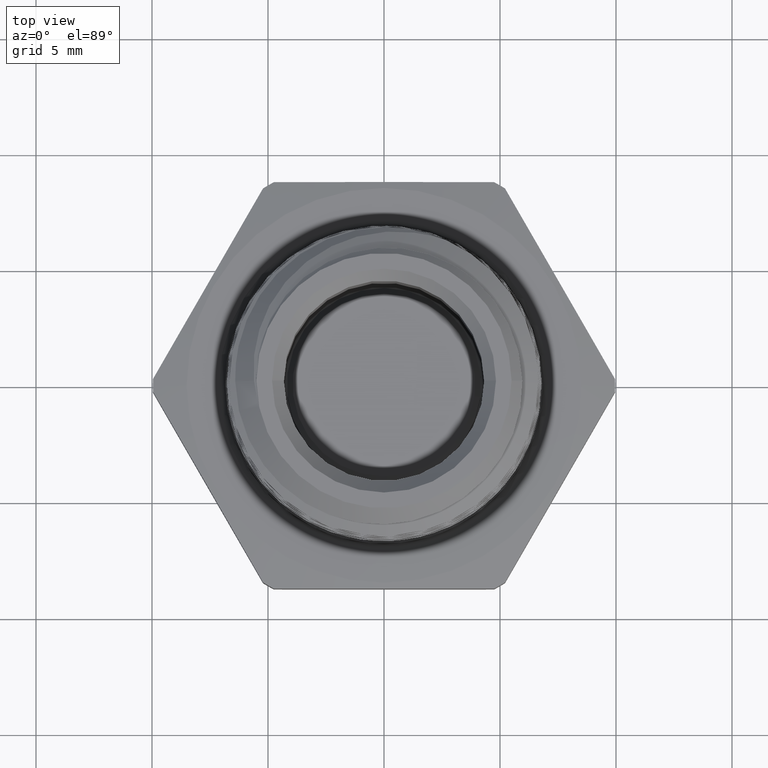
[diagram: clean part render]
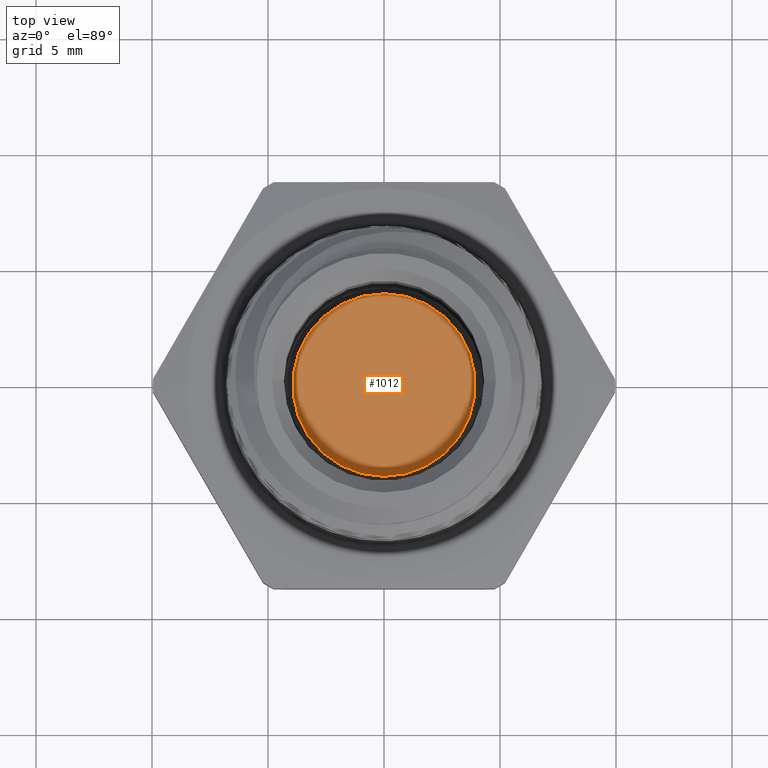
[diagram: same view with one face highlighted and labeled with its STEP entity id]
A machine part, top view. The second image highlights one B-rep face of the part: STEP entity #1012.
In plain terms, the highlighted planar face has unit normal (0, 0, 1).
Its self-contained STEP definition (entity closure, byte-faithful):
#588 = CARTESIAN_POINT ( 'NONE',  ( 0.0000000000000000000, 0.0000000000000000000, 0.1968503937007874100 ) ) ;
#590 = PLANE ( 'NONE',  #2279 ) ;
#592 = DIRECTION ( 'NONE',  ( -0.0000000000000000000, 0.0000000000000000000, 1.000000000000000000 ) ) ;
#593 = DIRECTION ( 'NONE',  ( 1.000000000000000000, 0.0000000000000000000, 0.0000000000000000000 ) ) ;
#631 = CARTESIAN_POINT ( 'NONE',  ( 0.1550000000000000000, 1.959434878635765400E-017, 0.1968503937007874100 ) ) ;
#636 = CARTESIAN_POINT ( 'NONE',  ( -0.1550000000000000000, 0.0000000000000000000, 0.1968503937007874100 ) ) ;
#1012 = ADVANCED_FACE ( 'NONE', ( #2168 ), #590, .T. ) ;
#1026 = ORIENTED_EDGE ( 'NONE', *, *, #1716, .T. ) ;
#1027 = ORIENTED_EDGE ( 'NONE', *, *, #1708, .T. ) ;
#1361 = VERTEX_POINT ( 'NONE', #631 ) ;
#1366 = VERTEX_POINT ( 'NONE', #636 ) ;
#1622 = EDGE_LOOP ( 'NONE', ( #1026, #1027 ) ) ;
#1708 = EDGE_CURVE ( 'NONE', #1361, #1366, #4681, .T. ) ;
#1716 = EDGE_CURVE ( 'NONE', #1366, #1361, #4695, .T. ) ;
#2168 = FACE_OUTER_BOUND ( 'NONE', #1622, .T. ) ;
#2279 = AXIS2_PLACEMENT_3D ( 'NONE', #588, #592, #593 ) ;
#2317 = AXIS2_PLACEMENT_3D ( 'NONE', #4827, #4828, #4829 ) ;
#2321 = AXIS2_PLACEMENT_3D ( 'NONE', #4845, #4846, #4847 ) ;
#4681 = CIRCLE ( 'NONE', #2317, 0.1550000000000000000 ) ;
#4695 = CIRCLE ( 'NONE', #2321, 0.1550000000000000000 ) ;
#4827 = CARTESIAN_POINT ( 'NONE',  ( -1.333458843753816200E-017, 0.0000000000000000000, 0.1968503937007874100 ) ) ;
#4828 = DIRECTION ( 'NONE',  ( -0.0000000000000000000, 0.0000000000000000000, 1.000000000000000000 ) ) ;
#4829 = DIRECTION ( 'NONE',  ( 1.000000000000000000, 0.0000000000000000000, 0.0000000000000000000 ) ) ;
#4845 = CARTESIAN_POINT ( 'NONE',  ( -1.333458843753816200E-017, 0.0000000000000000000, 0.1968503937007874100 ) ) ;
#4846 = DIRECTION ( 'NONE',  ( -0.0000000000000000000, 0.0000000000000000000, 1.000000000000000000 ) ) ;
#4847 = DIRECTION ( 'NONE',  ( 1.000000000000000000, 0.0000000000000000000, 0.0000000000000000000 ) ) ;